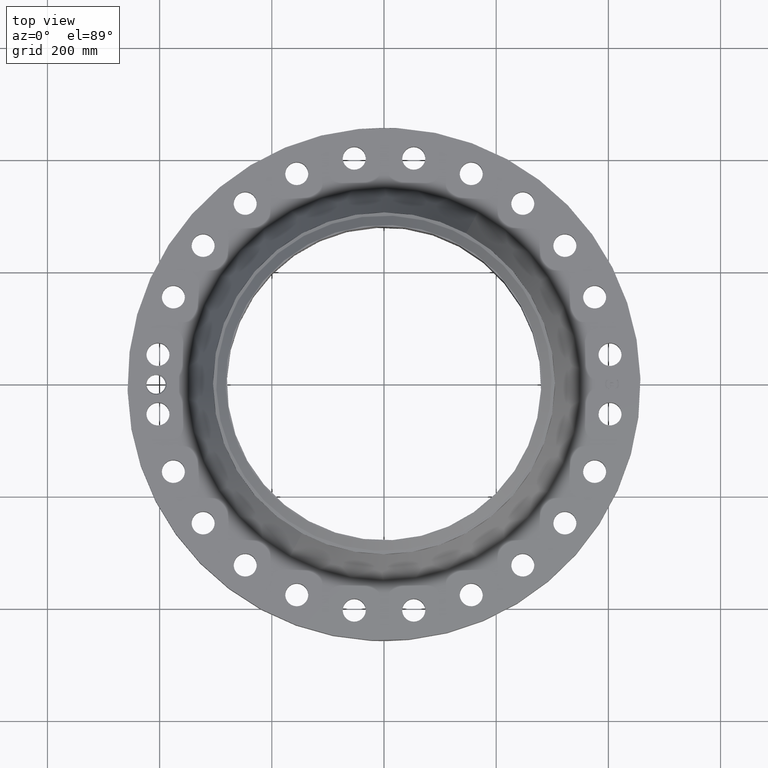
[diagram: clean part render]
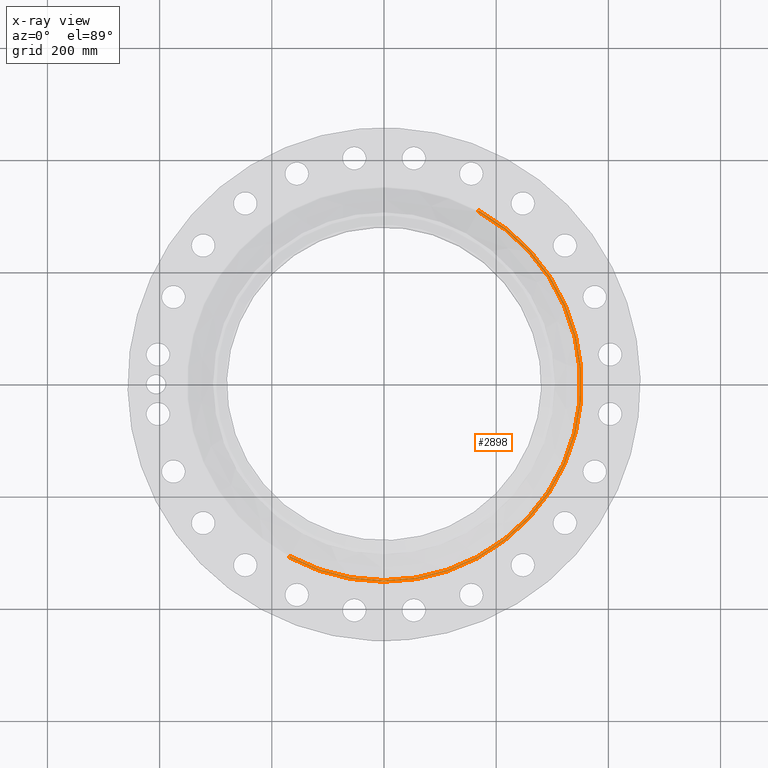
[diagram: x-ray — body ghosted, one internal face saturated and labeled with its STEP entity id]
A machine part, top view, then the same camera in x-ray: the body is ghosted and one INTERNAL B-rep face — a face not visible from any outside direction — is saturated and labeled: STEP entity #2898.
In plain terms, the highlighted toroidal blend (fillet) surface has major radius 352.519 mm and minor (blend) radius 3.048 mm.
Its self-contained STEP definition (entity closure, byte-faithful):
#867=AXIS2_PLACEMENT_3D('Circle Axis2P3D',#865,#866,$) ;
#2871=AXIS2_PLACEMENT_3D('Torus Axis2P3D',#2868,#2869,#2870) ;
#2875=AXIS2_PLACEMENT_3D('Circle Axis2P3D',#2873,#2874,$) ;
#2882=AXIS2_PLACEMENT_3D('Circle Axis2P3D',#2880,#2881,$) ;
#2889=AXIS2_PLACEMENT_3D('Circle Axis2P3D',#2887,#2888,$) ;
#860=CARTESIAN_POINT('Vertex',(-6.65379438537,-12.1796889252,2.81000000001)) ;
#862=CARTESIAN_POINT('Vertex',(6.65379438537,12.1796889252,2.81000000001)) ;
#865=CARTESIAN_POINT('Axis2P3D Location',(0.,0.,2.81000000001)) ;
#2868=CARTESIAN_POINT('Axis2P3D Location',(0.,0.,2.93000000001)) ;
#2873=CARTESIAN_POINT('Axis2P3D Location',(6.65379438537,12.1796889252,2.93000000001)) ;
#2877=CARTESIAN_POINT('Vertex',(6.60418880603,12.0888865213,2.86921998732)) ;
#2880=CARTESIAN_POINT('Axis2P3D Location',(0.,0.,2.86921998732)) ;
#2884=CARTESIAN_POINT('Vertex',(-6.60418880603,-12.0888865213,2.86921998732)) ;
#2887=CARTESIAN_POINT('Axis2P3D Location',(-6.65379438537,-12.1796889252,2.93000000001)) ;
#866=DIRECTION('Axis2P3D Direction',(0.,0.,-0.0393700787402)) ;
#2869=DIRECTION('Axis2P3D Direction',(0.,0.,-0.0393700787402)) ;
#2870=DIRECTION('Axis2P3D XDirection',(-0.0188750212049,-0.0345504945626,0.)) ;
#2874=DIRECTION('Axis2P3D Direction',(-0.0345504945626,0.0188750212049,0.)) ;
#2881=DIRECTION('Axis2P3D Direction',(0.,0.,-0.0393700787402)) ;
#2888=DIRECTION('Axis2P3D Direction',(0.0345504945626,-0.0188750212049,0.)) ;
#2893=ORIENTED_EDGE('',*,*,#869,.F.) ;
#2894=ORIENTED_EDGE('',*,*,#2879,.T.) ;
#2895=ORIENTED_EDGE('',*,*,#2886,.T.) ;
#2896=ORIENTED_EDGE('',*,*,#2891,.F.) ;
#2898=ADVANCED_FACE('PartBody',(#2897),#2872,.F.) ;
#868=CIRCLE('generated circle',#867,13.878681567) ;
#2876=CIRCLE('generated circle',#2875,0.12) ;
#2883=CIRCLE('generated circle',#2882,13.7752127791) ;
#2890=CIRCLE('generated circle',#2889,0.12) ;
#2872=TOROIDAL_SURFACE('homeo Torus',#2871,13.878681567,0.12) ;
#869=EDGE_CURVE('',#863,#861,#868,.T.) ;
#2879=EDGE_CURVE('',#863,#2878,#2876,.T.) ;
#2886=EDGE_CURVE('',#2878,#2885,#2883,.T.) ;
#2891=EDGE_CURVE('',#861,#2885,#2890,.T.) ;
#2892=EDGE_LOOP('',(#2893,#2894,#2895,#2896)) ;
#2897=FACE_OUTER_BOUND('',#2892,.T.) ;
#861=VERTEX_POINT('',#860) ;
#863=VERTEX_POINT('',#862) ;
#2878=VERTEX_POINT('',#2877) ;
#2885=VERTEX_POINT('',#2884) ;